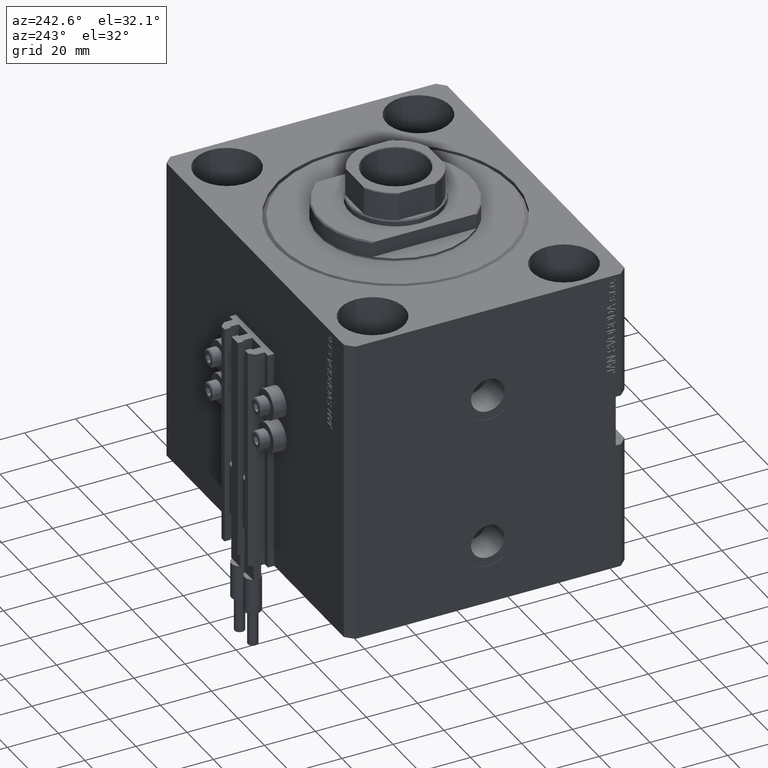
[diagram: clean part render]
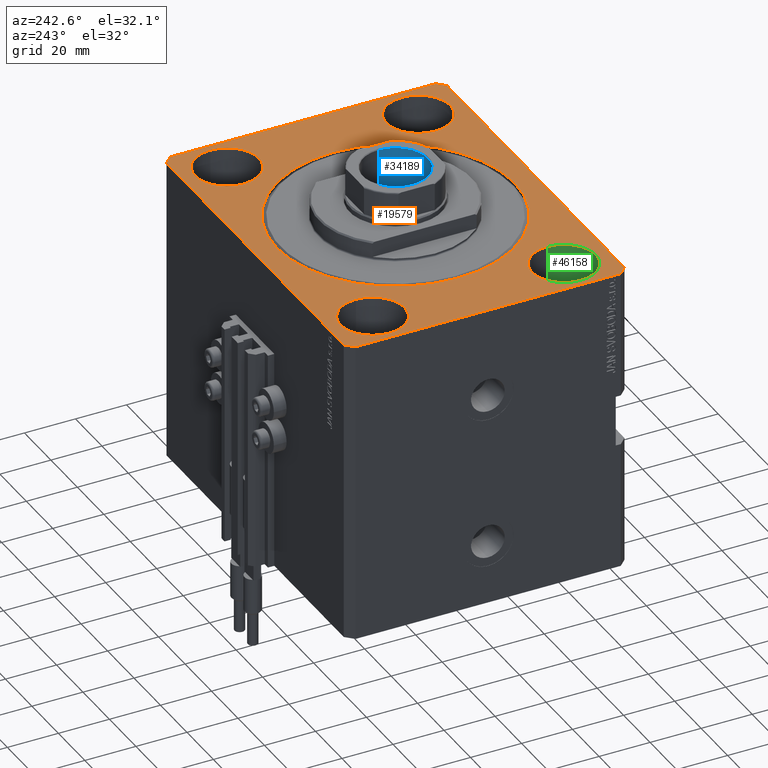
[diagram: same view with three faces highlighted in distinct colors, each labeled with its STEP entity id]
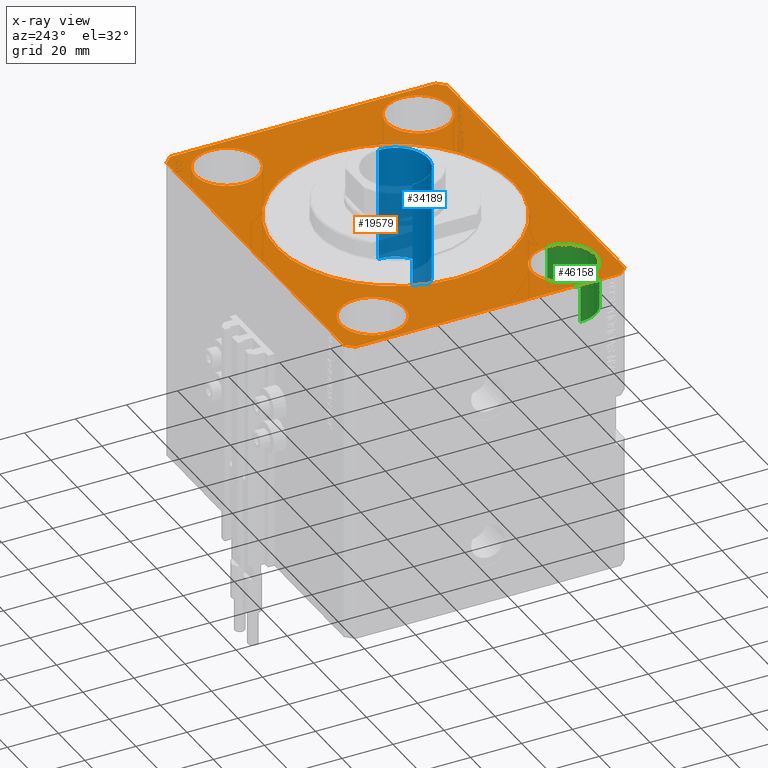
[diagram: x-ray of the same camera — body ghosted, the three highlighted faces saturated]
A machine part, auxiliary view with three faces highlighted in distinct colors.
The next image is the same camera in x-ray (body ghosted, the three faces saturated) — at least one of them is partly hidden behind the body in this view.
Their STEP definitions:

[orange] entity #19579 — the highlighted planar face has unit normal (0, 0, 1).
#109 = CARTESIAN_POINT ( 'NONE',  ( -69.99999999999998579, 51.99999999999999289, 0.000000000000000000 ) ) ;
#154 = CARTESIAN_POINT ( 'NONE',  ( 67.00000000000001421, -54.99999999999997868, 0.000000000000000000 ) ) ;
#727 = FACE_BOUND ( 'NONE', #42353, .T. ) ;
#1619 = CIRCLE ( 'NONE', #29659, 46.50000000000000000 ) ;
#1887 = VERTEX_POINT ( 'NONE', #32364 ) ;
#2186 = ORIENTED_EDGE ( 'NONE', *, *, #29735, .T. ) ;
#2704 = LINE ( 'NONE', #37795, #38920 ) ;
#3298 = CARTESIAN_POINT ( 'NONE',  ( 55.00000000000000711, 37.50000000000002132, 0.000000000000000000 ) ) ;
#3666 = VECTOR ( 'NONE', #15274, 1000.000000000000114 ) ;
#3911 = ORIENTED_EDGE ( 'NONE', *, *, #31749, .F. ) ;
#4977 = DIRECTION ( 'NONE',  ( 0.000000000000000000, 0.000000000000000000, 1.000000000000000000 ) ) ;
#5346 = CARTESIAN_POINT ( 'NONE',  ( -69.99999999999998579, 51.99999999999999289, 0.000000000000000000 ) ) ;
#5644 = CARTESIAN_POINT ( 'NONE',  ( 70.00000000000000000, -51.99999999999999289, 0.000000000000000000 ) ) ;
#5925 = CARTESIAN_POINT ( 'NONE',  ( 70.00000000000000000, -51.99999999999999289, 0.000000000000000000 ) ) ;
#6113 = DIRECTION ( 'NONE',  ( 0.000000000000000000, 0.000000000000000000, 1.000000000000000000 ) ) ;
#6324 = DIRECTION ( 'NONE',  ( 0.000000000000000000, 0.000000000000000000, 1.000000000000000000 ) ) ;
#6627 = DIRECTION ( 'NONE',  ( 1.000000000000000000, 0.000000000000000000, 0.000000000000000000 ) ) ;
#6803 = ORIENTED_EDGE ( 'NONE', *, *, #20041, .F. ) ;
#6814 = CARTESIAN_POINT ( 'NONE',  ( -55.00000000000000711, -37.50000000000000711, 0.000000000000000000 ) ) ;
#7109 = VERTEX_POINT ( 'NONE', #10457 ) ;
#7735 = EDGE_LOOP ( 'NONE', ( #32256, #44653 ) ) ;
#7846 = ORIENTED_EDGE ( 'NONE', *, *, #48810, .T. ) ;
#8299 = VERTEX_POINT ( 'NONE', #5644 ) ;
#8996 = DIRECTION ( 'NONE',  ( 1.000000000000000000, 0.000000000000000000, 0.000000000000000000 ) ) ;
#9095 = VERTEX_POINT ( 'NONE', #27323 ) ;
#9129 = CARTESIAN_POINT ( 'NONE',  ( 55.00000000000000711, -37.50000000000000711, 0.000000000000000000 ) ) ;
#9463 = VERTEX_POINT ( 'NONE', #109 ) ;
#9575 = CARTESIAN_POINT ( 'NONE',  ( 42.50000000000000711, 37.50000000000002132, 0.000000000000000000 ) ) ;
#9628 = CIRCLE ( 'NONE', #32054, 12.49999999999999645 ) ;
#9860 = ORIENTED_EDGE ( 'NONE', *, *, #47506, .T. ) ;
#10106 = EDGE_CURVE ( 'NONE', #27073, #33566, #23917, .T. ) ;
#10457 = CARTESIAN_POINT ( 'NONE',  ( -67.00000000000001421, -55.00000000000000000, 0.000000000000000000 ) ) ;
#10783 = VERTEX_POINT ( 'NONE', #39258 ) ;
#10971 = DIRECTION ( 'NONE',  ( 0.7071067811865466846, -0.7071067811865483499, 0.000000000000000000 ) ) ;
#11224 = VERTEX_POINT ( 'NONE', #16319 ) ;
#11947 = AXIS2_PLACEMENT_3D ( 'NONE', #14361, #6113, #36452 ) ;
#11969 = ORIENTED_EDGE ( 'NONE', *, *, #29570, .T. ) ;
#12518 = CARTESIAN_POINT ( 'NONE',  ( 67.00000000000001421, -54.99999999999997868, 0.000000000000000000 ) ) ;
#12558 = DIRECTION ( 'NONE',  ( 1.000000000000000000, 1.553483709829976241E-16, 0.000000000000000000 ) ) ;
#12840 = VECTOR ( 'NONE', #12558, 1000.000000000000000 ) ;
#12867 = ORIENTED_EDGE ( 'NONE', *, *, #10106, .F. ) ;
#13201 = DIRECTION ( 'NONE',  ( 5.337610695313255329E-15, 1.000000000000000000, 0.000000000000000000 ) ) ;
#13308 = DIRECTION ( 'NONE',  ( 0.000000000000000000, 0.000000000000000000, 1.000000000000000000 ) ) ;
#13566 = EDGE_CURVE ( 'NONE', #9463, #42547, #43459, .T. ) ;
#13722 = EDGE_CURVE ( 'NONE', #32028, #41490, #9628, .T. ) ;
#14110 = EDGE_CURVE ( 'NONE', #46524, #10783, #1619, .T. ) ;
#14361 = CARTESIAN_POINT ( 'NONE',  ( 55.00000000000000711, -37.50000000000000711, 0.000000000000000000 ) ) ;
#14401 = EDGE_LOOP ( 'NONE', ( #36648, #21491 ) ) ;
#14996 = LINE ( 'NONE', #30781, #35535 ) ;
#15018 = CIRCLE ( 'NONE', #18243, 46.50000000000000000 ) ;
#15231 = VECTOR ( 'NONE', #36436, 1000.000000000000000 ) ;
#15274 = DIRECTION ( 'NONE',  ( 0.7071067811865474617, 0.7071067811865474617, 0.000000000000000000 ) ) ;
#16066 = EDGE_CURVE ( 'NONE', #41490, #32028, #40969, .T. ) ;
#16270 = CIRCLE ( 'NONE', #19441, 12.49999999999999645 ) ;
#16319 = CARTESIAN_POINT ( 'NONE',  ( -42.50000000000000711, 37.49999999999999289, 0.000000000000000000 ) ) ;
#16545 = CARTESIAN_POINT ( 'NONE',  ( 0.000000000000000000, 0.000000000000000000, 0.000000000000000000 ) ) ;
#17286 = DIRECTION ( 'NONE',  ( 0.000000000000000000, 0.000000000000000000, 1.000000000000000000 ) ) ;
#17678 = EDGE_CURVE ( 'NONE', #31337, #9463, #23514, .T. ) ;
#17847 = VECTOR ( 'NONE', #46974, 1000.000000000000000 ) ;
#18243 = AXIS2_PLACEMENT_3D ( 'NONE', #20012, #24516, #8996 ) ;
#18591 = DIRECTION ( 'NONE',  ( 0.000000000000000000, 0.000000000000000000, 1.000000000000000000 ) ) ;
#18762 = AXIS2_PLACEMENT_3D ( 'NONE', #32107, #13308, #27849 ) ;
#18812 = FACE_BOUND ( 'NONE', #14401, .T. ) ;
#19048 = FACE_OUTER_BOUND ( 'NONE', #37696, .T. ) ;
#19441 = AXIS2_PLACEMENT_3D ( 'NONE', #9129, #35190, #39946 ) ;
#19579 = ADVANCED_FACE ( 'NONE', ( #42621, #35089, #18812, #727, #38125, #19048 ), #34348, .T. ) ;
#19757 = CARTESIAN_POINT ( 'NONE',  ( -67.00000000000000000, 55.00000000000000000, 0.000000000000000000 ) ) ;
#20012 = CARTESIAN_POINT ( 'NONE',  ( 0.000000000000000000, 0.000000000000000000, 0.000000000000000000 ) ) ;
#20041 = EDGE_CURVE ( 'NONE', #48561, #11224, #21056, .T. ) ;
#20110 = ORIENTED_EDGE ( 'NONE', *, *, #13566, .T. ) ;
#20776 = EDGE_LOOP ( 'NONE', ( #12867, #44381 ) ) ;
#21056 = CIRCLE ( 'NONE', #24242, 12.49999999999999645 ) ;
#21491 = ORIENTED_EDGE ( 'NONE', *, *, #16066, .F. ) ;
#21601 = DIRECTION ( 'NONE',  ( 1.000000000000000000, 0.000000000000000000, 0.000000000000000000 ) ) ;
#21742 = AXIS2_PLACEMENT_3D ( 'NONE', #25424, #40970, #6627 ) ;
#23431 = DIRECTION ( 'NONE',  ( 1.000000000000000000, 0.000000000000000000, 0.000000000000000000 ) ) ;
#23514 = LINE ( 'NONE', #19757, #32982 ) ;
#23815 = ORIENTED_EDGE ( 'NONE', *, *, #38730, .F. ) ;
#23818 = CARTESIAN_POINT ( 'NONE',  ( -67.00000000000001421, -55.00000000000000000, 0.000000000000000000 ) ) ;
#23917 = CIRCLE ( 'NONE', #33516, 12.49999999999999645 ) ;
#24242 = AXIS2_PLACEMENT_3D ( 'NONE', #45289, #45770, #23431 ) ;
#24516 = DIRECTION ( 'NONE',  ( 0.000000000000000000, 0.000000000000000000, 1.000000000000000000 ) ) ;
#24818 = AXIS2_PLACEMENT_3D ( 'NONE', #37045, #26471, #44805 ) ;
#24981 = EDGE_CURVE ( 'NONE', #8299, #9095, #40272, .T. ) ;
#25424 = CARTESIAN_POINT ( 'NONE',  ( 55.00000000000000711, 37.50000000000002132, 0.000000000000000000 ) ) ;
#26310 = EDGE_CURVE ( 'NONE', #33566, #27073, #33157, .T. ) ;
#26471 = DIRECTION ( 'NONE',  ( 0.000000000000000000, 0.000000000000000000, 1.000000000000000000 ) ) ;
#26726 = VERTEX_POINT ( 'NONE', #42477 ) ;
#26731 = ORIENTED_EDGE ( 'NONE', *, *, #17678, .T. ) ;
#27073 = VERTEX_POINT ( 'NONE', #40141 ) ;
#27114 = CARTESIAN_POINT ( 'NONE',  ( -70.00000000000001421, -51.99999999999999289, 0.000000000000000000 ) ) ;
#27323 = CARTESIAN_POINT ( 'NONE',  ( 70.00000000000056843, 51.99999999999996447, 0.000000000000000000 ) ) ;
#27459 = AXIS2_PLACEMENT_3D ( 'NONE', #16545, #17286, #39111 ) ;
#27849 = DIRECTION ( 'NONE',  ( 1.000000000000000000, 0.000000000000000000, 0.000000000000000000 ) ) ;
#28014 = CIRCLE ( 'NONE', #24818, 12.49999999999999645 ) ;
#29570 = EDGE_CURVE ( 'NONE', #42722, #8299, #31564, .T. ) ;
#29659 = AXIS2_PLACEMENT_3D ( 'NONE', #32043, #4977, #32788 ) ;
#29735 = EDGE_CURVE ( 'NONE', #42547, #7109, #2704, .T. ) ;
#30339 = CARTESIAN_POINT ( 'NONE',  ( -46.50000000000000000, 5.694607616035192278E-15, 0.000000000000000000 ) ) ;
#30444 = VERTEX_POINT ( 'NONE', #30763 ) ;
#30763 = CARTESIAN_POINT ( 'NONE',  ( 42.50000000000000711, -37.50000000000000711, 0.000000000000000000 ) ) ;
#30781 = CARTESIAN_POINT ( 'NONE',  ( 67.00000000000061107, 55.00000000000002132, 0.000000000000000000 ) ) ;
#31337 = VERTEX_POINT ( 'NONE', #35923 ) ;
#31564 = LINE ( 'NONE', #12518, #3666 ) ;
#31607 = LINE ( 'NONE', #23818, #12840 ) ;
#31681 = LINE ( 'NONE', #32170, #17847 ) ;
#31741 = ORIENTED_EDGE ( 'NONE', *, *, #39487, .T. ) ;
#31749 = EDGE_CURVE ( 'NONE', #10783, #46524, #15018, .T. ) ;
#32028 = VERTEX_POINT ( 'NONE', #42785 ) ;
#32043 = CARTESIAN_POINT ( 'NONE',  ( 0.000000000000000000, 0.000000000000000000, 0.000000000000000000 ) ) ;
#32051 = EDGE_LOOP ( 'NONE', ( #3911, #36320 ) ) ;
#32054 = AXIS2_PLACEMENT_3D ( 'NONE', #3298, #18591, #44681 ) ;
#32107 = CARTESIAN_POINT ( 'NONE',  ( -55.00000000000000711, -37.50000000000000711, 0.000000000000000000 ) ) ;
#32170 = CARTESIAN_POINT ( 'NONE',  ( 70.00000000000056843, 51.99999999999996447, 0.000000000000000000 ) ) ;
#32256 = ORIENTED_EDGE ( 'NONE', *, *, #33364, .F. ) ;
#32364 = CARTESIAN_POINT ( 'NONE',  ( 67.00000000000061107, 55.00000000000002132, 0.000000000000000000 ) ) ;
#32788 = DIRECTION ( 'NONE',  ( 1.000000000000000000, 0.000000000000000000, 0.000000000000000000 ) ) ;
#32982 = VECTOR ( 'NONE', #35052, 1000.000000000000114 ) ;
#33157 = CIRCLE ( 'NONE', #18762, 12.49999999999999645 ) ;
#33364 = EDGE_CURVE ( 'NONE', #26726, #30444, #33560, .T. ) ;
#33516 = AXIS2_PLACEMENT_3D ( 'NONE', #6814, #6324, #21601 ) ;
#33560 = CIRCLE ( 'NONE', #11947, 12.49999999999999645 ) ;
#33566 = VERTEX_POINT ( 'NONE', #42546 ) ;
#34348 = PLANE ( 'NONE',  #27459 ) ;
#35052 = DIRECTION ( 'NONE',  ( -0.7071067811865451302, -0.7071067811865500152, 0.000000000000000000 ) ) ;
#35089 = FACE_BOUND ( 'NONE', #7735, .T. ) ;
#35190 = DIRECTION ( 'NONE',  ( 0.000000000000000000, 0.000000000000000000, 1.000000000000000000 ) ) ;
#35535 = VECTOR ( 'NONE', #42077, 1000.000000000000000 ) ;
#35923 = CARTESIAN_POINT ( 'NONE',  ( -67.00000000000000000, 55.00000000000000000, 0.000000000000000000 ) ) ;
#36250 = CARTESIAN_POINT ( 'NONE',  ( -67.50000000000000000, 37.49999999999999289, 0.000000000000000000 ) ) ;
#36320 = ORIENTED_EDGE ( 'NONE', *, *, #14110, .F. ) ;
#36436 = DIRECTION ( 'NONE',  ( -2.668805347656626678E-16, -1.000000000000000000, 0.000000000000000000 ) ) ;
#36452 = DIRECTION ( 'NONE',  ( 1.000000000000000000, 0.000000000000000000, 0.000000000000000000 ) ) ;
#36648 = ORIENTED_EDGE ( 'NONE', *, *, #13722, .F. ) ;
#37045 = CARTESIAN_POINT ( 'NONE',  ( -55.00000000000000711, 37.49999999999999289, 0.000000000000000000 ) ) ;
#37696 = EDGE_LOOP ( 'NONE', ( #9860, #26731, #20110, #2186, #31741, #11969, #44831, #7846 ) ) ;
#37795 = CARTESIAN_POINT ( 'NONE',  ( -70.00000000000001421, -51.99999999999999289, 0.000000000000000000 ) ) ;
#38125 = FACE_BOUND ( 'NONE', #32051, .T. ) ;
#38730 = EDGE_CURVE ( 'NONE', #11224, #48561, #28014, .T. ) ;
#38920 = VECTOR ( 'NONE', #10971, 1000.000000000000000 ) ;
#39111 = DIRECTION ( 'NONE',  ( 1.000000000000000000, 0.000000000000000000, -0.000000000000000000 ) ) ;
#39258 = CARTESIAN_POINT ( 'NONE',  ( 46.50000000000000000, 0.000000000000000000, 0.000000000000000000 ) ) ;
#39487 = EDGE_CURVE ( 'NONE', #7109, #42722, #31607, .T. ) ;
#39946 = DIRECTION ( 'NONE',  ( 1.000000000000000000, 0.000000000000000000, 0.000000000000000000 ) ) ;
#40141 = CARTESIAN_POINT ( 'NONE',  ( -42.50000000000000711, -37.50000000000000711, 0.000000000000000000 ) ) ;
#40272 = LINE ( 'NONE', #5925, #45921 ) ;
#40969 = CIRCLE ( 'NONE', #21742, 12.49999999999999645 ) ;
#40970 = DIRECTION ( 'NONE',  ( 0.000000000000000000, 0.000000000000000000, 1.000000000000000000 ) ) ;
#41490 = VERTEX_POINT ( 'NONE', #9575 ) ;
#42077 = DIRECTION ( 'NONE',  ( -1.000000000000000000, -1.553483709829969339E-16, 0.000000000000000000 ) ) ;
#42353 = EDGE_LOOP ( 'NONE', ( #23815, #6803 ) ) ;
#42477 = CARTESIAN_POINT ( 'NONE',  ( 67.50000000000000000, -37.50000000000000711, 0.000000000000000000 ) ) ;
#42546 = CARTESIAN_POINT ( 'NONE',  ( -67.50000000000000000, -37.50000000000000711, 0.000000000000000000 ) ) ;
#42547 = VERTEX_POINT ( 'NONE', #27114 ) ;
#42621 = FACE_BOUND ( 'NONE', #20776, .T. ) ;
#42722 = VERTEX_POINT ( 'NONE', #154 ) ;
#42785 = CARTESIAN_POINT ( 'NONE',  ( 67.50000000000000000, 37.50000000000002132, 0.000000000000000000 ) ) ;
#43459 = LINE ( 'NONE', #5346, #15231 ) ;
#44381 = ORIENTED_EDGE ( 'NONE', *, *, #26310, .F. ) ;
#44653 = ORIENTED_EDGE ( 'NONE', *, *, #48738, .F. ) ;
#44681 = DIRECTION ( 'NONE',  ( 1.000000000000000000, 0.000000000000000000, 0.000000000000000000 ) ) ;
#44805 = DIRECTION ( 'NONE',  ( 1.000000000000000000, 0.000000000000000000, 0.000000000000000000 ) ) ;
#44831 = ORIENTED_EDGE ( 'NONE', *, *, #24981, .T. ) ;
#45289 = CARTESIAN_POINT ( 'NONE',  ( -55.00000000000000711, 37.49999999999999289, 0.000000000000000000 ) ) ;
#45770 = DIRECTION ( 'NONE',  ( 0.000000000000000000, 0.000000000000000000, 1.000000000000000000 ) ) ;
#45921 = VECTOR ( 'NONE', #13201, 1000.000000000000000 ) ;
#46524 = VERTEX_POINT ( 'NONE', #30339 ) ;
#46974 = DIRECTION ( 'NONE',  ( -0.7071067811865344721, 0.7071067811865606734, 0.000000000000000000 ) ) ;
#47506 = EDGE_CURVE ( 'NONE', #1887, #31337, #14996, .T. ) ;
#48561 = VERTEX_POINT ( 'NONE', #36250 ) ;
#48738 = EDGE_CURVE ( 'NONE', #30444, #26726, #16270, .T. ) ;
#48810 = EDGE_CURVE ( 'NONE', #9095, #1887, #31681, .T. ) ;

[blue] entity #34189 — the highlighted cylindrical surface (partial cylindrical patch) has radius 12.75 mm, axis along (0, 0, 1).
#1512 = EDGE_CURVE ( 'NONE', #42204, #37296, #2076, .T. ) ;
#1767 = ORIENTED_EDGE ( 'NONE', *, *, #37846, .F. ) ;
#2076 = LINE ( 'NONE', #2818, #9140 ) ;
#2818 = CARTESIAN_POINT ( 'NONE',  ( -12.74999999999999467, 1.561424668912874519E-15, 115.0000000000000000 ) ) ;
#3189 = CARTESIAN_POINT ( 'NONE',  ( 0.000000000000000000, 0.000000000000000000, 115.0000000000000000 ) ) ;
#7925 = ORIENTED_EDGE ( 'NONE', *, *, #25438, .T. ) ;
#9140 = VECTOR ( 'NONE', #25628, 1000.000000000000000 ) ;
#9385 = DIRECTION ( 'NONE',  ( 1.000000000000000000, 0.000000000000000000, 0.000000000000000000 ) ) ;
#11215 = FACE_OUTER_BOUND ( 'NONE', #29274, .T. ) ;
#12116 = VERTEX_POINT ( 'NONE', #17240 ) ;
#12838 = DIRECTION ( 'NONE',  ( 1.000000000000000000, 0.000000000000000000, 0.000000000000000000 ) ) ;
#13140 = DIRECTION ( 'NONE',  ( 0.000000000000000000, 0.000000000000000000, 1.000000000000000000 ) ) ;
#13599 = AXIS2_PLACEMENT_3D ( 'NONE', #3189, #30022, #45316 ) ;
#15215 = CYLINDRICAL_SURFACE ( 'NONE', #13599, 12.74999999999999467 ) ;
#15433 = LINE ( 'NONE', #42258, #34372 ) ;
#16362 = CARTESIAN_POINT ( 'NONE',  ( -12.74999999999999112, 1.561424668912874125E-15, 70.00000000000000000 ) ) ;
#16411 = ORIENTED_EDGE ( 'NONE', *, *, #1512, .T. ) ;
#16899 = CARTESIAN_POINT ( 'NONE',  ( 0.000000000000000000, 0.000000000000000000, 114.6999999999999602 ) ) ;
#17240 = CARTESIAN_POINT ( 'NONE',  ( 12.74999999999999467, 0.000000000000000000, 114.6999999999999602 ) ) ;
#19932 = DIRECTION ( 'NONE',  ( -0.000000000000000000, -0.000000000000000000, 1.000000000000000000 ) ) ;
#25438 = EDGE_CURVE ( 'NONE', #37296, #12116, #33897, .T. ) ;
#25628 = DIRECTION ( 'NONE',  ( -0.000000000000000000, -0.000000000000000000, 1.000000000000000000 ) ) ;
#29274 = EDGE_LOOP ( 'NONE', ( #45173, #16411, #7925, #1767 ) ) ;
#30022 = DIRECTION ( 'NONE',  ( -0.000000000000000000, -0.000000000000000000, 1.000000000000000000 ) ) ;
#31401 = AXIS2_PLACEMENT_3D ( 'NONE', #31645, #46690, #12838 ) ;
#31645 = CARTESIAN_POINT ( 'NONE',  ( 0.000000000000000000, 0.000000000000000000, 70.00000000000000000 ) ) ;
#31745 = VERTEX_POINT ( 'NONE', #32041 ) ;
#32041 = CARTESIAN_POINT ( 'NONE',  ( 12.74999999999999112, 0.000000000000000000, 70.00000000000000000 ) ) ;
#33897 = CIRCLE ( 'NONE', #40325, 12.74999999999999467 ) ;
#34189 = ADVANCED_FACE ( 'NONE', ( #11215 ), #15215, .F. ) ;
#34372 = VECTOR ( 'NONE', #19932, 1000.000000000000000 ) ;
#37047 = CIRCLE ( 'NONE', #31401, 12.74999999999999112 ) ;
#37296 = VERTEX_POINT ( 'NONE', #40900 ) ;
#37846 = EDGE_CURVE ( 'NONE', #31745, #12116, #15433, .T. ) ;
#40325 = AXIS2_PLACEMENT_3D ( 'NONE', #16899, #13140, #9385 ) ;
#40900 = CARTESIAN_POINT ( 'NONE',  ( -12.74999999999999467, 1.561424668912874519E-15, 114.6999999999999602 ) ) ;
#42204 = VERTEX_POINT ( 'NONE', #16362 ) ;
#42258 = CARTESIAN_POINT ( 'NONE',  ( 12.74999999999999467, 0.000000000000000000, 115.0000000000000000 ) ) ;
#43545 = EDGE_CURVE ( 'NONE', #42204, #31745, #37047, .T. ) ;
#45173 = ORIENTED_EDGE ( 'NONE', *, *, #43545, .F. ) ;
#45316 = DIRECTION ( 'NONE',  ( 1.000000000000000000, 0.000000000000000000, 0.000000000000000000 ) ) ;
#46690 = DIRECTION ( 'NONE',  ( -0.000000000000000000, -0.000000000000000000, 1.000000000000000000 ) ) ;

[green] entity #46158 — the highlighted cylindrical surface (edge-blend (fillet) strip) has radius 12.5 mm, axis along (0, 0, 1).
#1911 = CARTESIAN_POINT ( 'NONE',  ( -67.50000000000000000, -37.50000000000000711, -17.00000000000000000 ) ) ;
#2892 = DIRECTION ( 'NONE',  ( 1.000000000000000000, 0.000000000000000000, 0.000000000000000000 ) ) ;
#6608 = CARTESIAN_POINT ( 'NONE',  ( -55.00000000000000711, -37.50000000000000711, -17.00000000000000000 ) ) ;
#9094 = AXIS2_PLACEMENT_3D ( 'NONE', #6608, #21648, #22137 ) ;
#10683 = DIRECTION ( 'NONE',  ( 0.000000000000000000, 0.000000000000000000, 1.000000000000000000 ) ) ;
#12297 = AXIS2_PLACEMENT_3D ( 'NONE', #45014, #10683, #2892 ) ;
#13308 = DIRECTION ( 'NONE',  ( 0.000000000000000000, 0.000000000000000000, 1.000000000000000000 ) ) ;
#13914 = CIRCLE ( 'NONE', #12297, 12.49999999999999645 ) ;
#14324 = VERTEX_POINT ( 'NONE', #39493 ) ;
#15236 = LINE ( 'NONE', #26762, #28440 ) ;
#18620 = CYLINDRICAL_SURFACE ( 'NONE', #9094, 12.49999999999999645 ) ;
#18762 = AXIS2_PLACEMENT_3D ( 'NONE', #32107, #13308, #27849 ) ;
#18896 = VECTOR ( 'NONE', #32005, 1000.000000000000000 ) ;
#20718 = LINE ( 'NONE', #1911, #18896 ) ;
#21648 = DIRECTION ( 'NONE',  ( -0.000000000000000000, -0.000000000000000000, 1.000000000000000000 ) ) ;
#22137 = DIRECTION ( 'NONE',  ( 1.000000000000000000, 0.000000000000000000, 0.000000000000000000 ) ) ;
#23807 = ORIENTED_EDGE ( 'NONE', *, *, #30512, .T. ) ;
#25160 = EDGE_CURVE ( 'NONE', #14324, #40870, #13914, .T. ) ;
#26310 = EDGE_CURVE ( 'NONE', #33566, #27073, #33157, .T. ) ;
#26762 = CARTESIAN_POINT ( 'NONE',  ( -42.50000000000000711, -37.50000000000000711, -17.00000000000000000 ) ) ;
#27073 = VERTEX_POINT ( 'NONE', #40141 ) ;
#27849 = DIRECTION ( 'NONE',  ( 1.000000000000000000, 0.000000000000000000, 0.000000000000000000 ) ) ;
#28028 = ORIENTED_EDGE ( 'NONE', *, *, #25160, .F. ) ;
#28440 = VECTOR ( 'NONE', #45573, 1000.000000000000000 ) ;
#28484 = EDGE_CURVE ( 'NONE', #40870, #27073, #15236, .T. ) ;
#30512 = EDGE_CURVE ( 'NONE', #14324, #33566, #20718, .T. ) ;
#31498 = ORIENTED_EDGE ( 'NONE', *, *, #26310, .T. ) ;
#32005 = DIRECTION ( 'NONE',  ( -0.000000000000000000, -0.000000000000000000, 1.000000000000000000 ) ) ;
#32107 = CARTESIAN_POINT ( 'NONE',  ( -55.00000000000000711, -37.50000000000000711, 0.000000000000000000 ) ) ;
#33157 = CIRCLE ( 'NONE', #18762, 12.49999999999999645 ) ;
#33421 = FACE_OUTER_BOUND ( 'NONE', #49363, .T. ) ;
#33566 = VERTEX_POINT ( 'NONE', #42546 ) ;
#39493 = CARTESIAN_POINT ( 'NONE',  ( -67.50000000000000000, -37.50000000000000711, -17.00000000000000000 ) ) ;
#40141 = CARTESIAN_POINT ( 'NONE',  ( -42.50000000000000711, -37.50000000000000711, 0.000000000000000000 ) ) ;
#40870 = VERTEX_POINT ( 'NONE', #46812 ) ;
#42546 = CARTESIAN_POINT ( 'NONE',  ( -67.50000000000000000, -37.50000000000000711, 0.000000000000000000 ) ) ;
#45014 = CARTESIAN_POINT ( 'NONE',  ( -55.00000000000000711, -37.50000000000000711, -17.00000000000000000 ) ) ;
#45573 = DIRECTION ( 'NONE',  ( -0.000000000000000000, -0.000000000000000000, 1.000000000000000000 ) ) ;
#46158 = ADVANCED_FACE ( 'NONE', ( #33421 ), #18620, .F. ) ;
#46812 = CARTESIAN_POINT ( 'NONE',  ( -42.50000000000000711, -37.50000000000000711, -17.00000000000000000 ) ) ;
#49275 = ORIENTED_EDGE ( 'NONE', *, *, #28484, .F. ) ;
#49363 = EDGE_LOOP ( 'NONE', ( #28028, #23807, #31498, #49275 ) ) ;